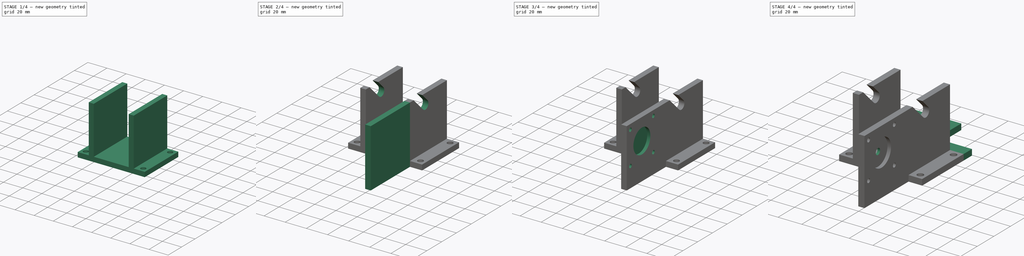
[diagram: build sequence overview — one tinted view per stage of 4, left to right]
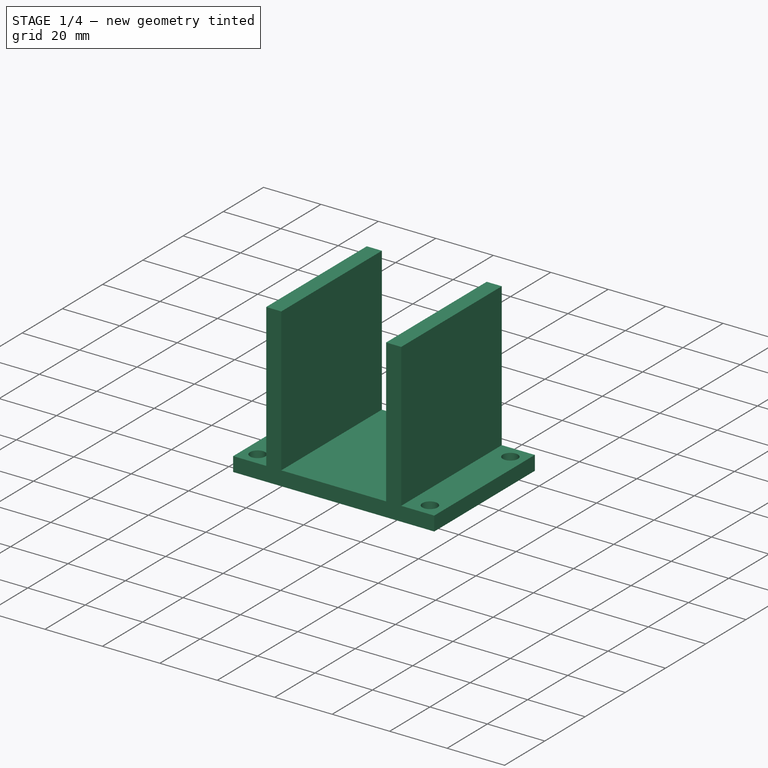
[diagram: stage 1 of 4 — iso view after this stage's code; geometry added in this stage tinted green]
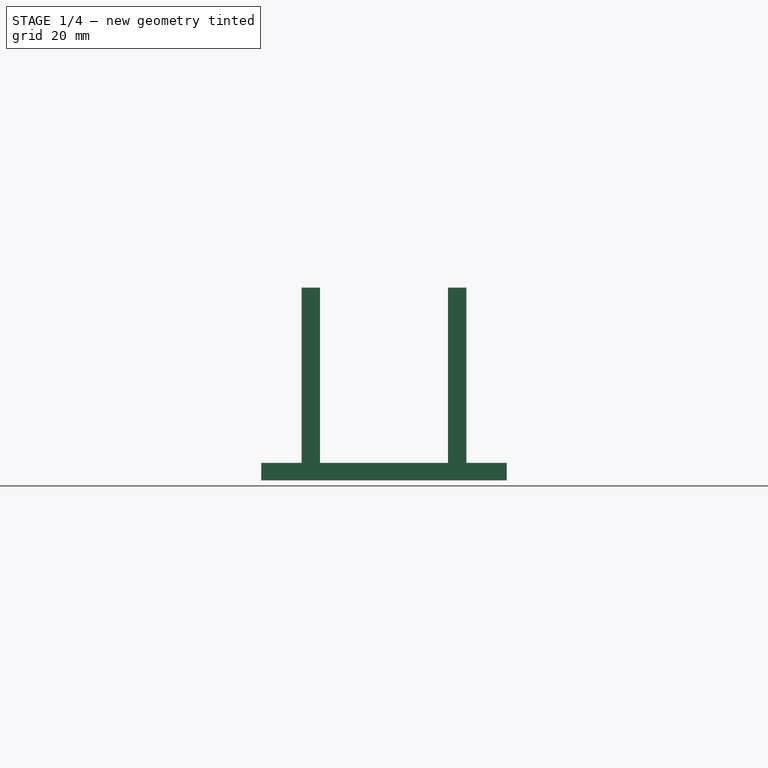
[diagram: stage 1 of 4 — front view after this stage's code; geometry added in this stage tinted green]
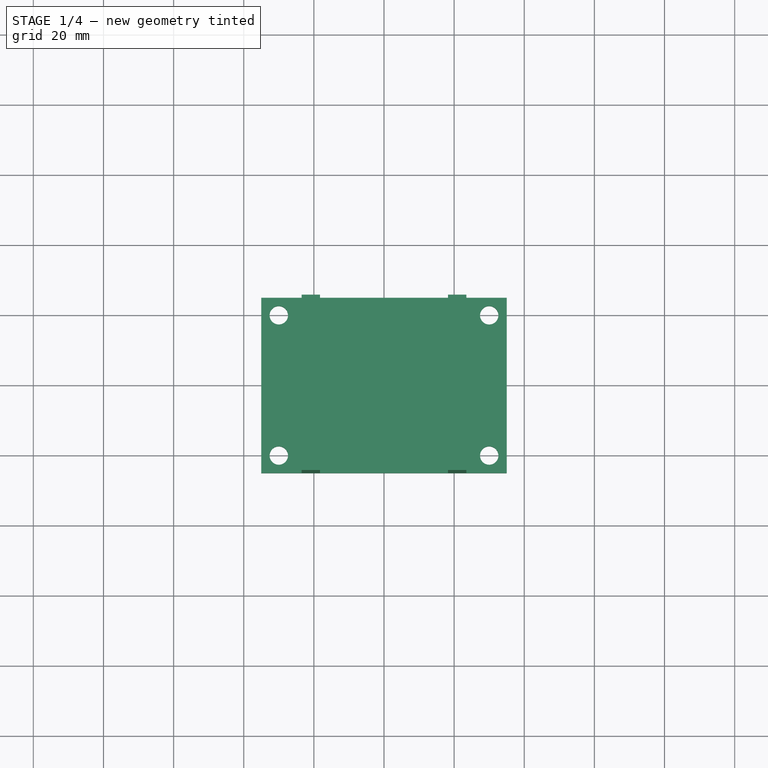
[diagram: stage 1 of 4 — top view after this stage's code; geometry added in this stage tinted green]
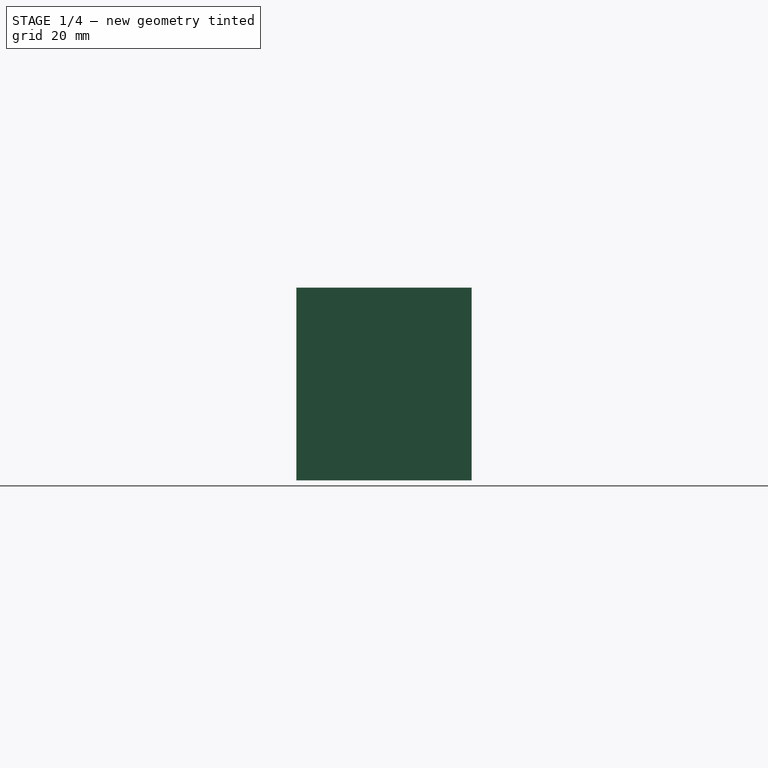
[diagram: stage 1 of 4 — right view after this stage's code; geometry added in this stage tinted green]
FCSTD DOCUMENT  (FreeCAD 0.21R33771 (Git))
Label: BeltGearMountAndStepperMount
License: All rights reserved
LicenseURL: https://en.wikipedia.org/wiki/All_rights_reserved
objects: Sketcher::SketchObject×13, PartDesign::Pocket×9, PartDesign::Pad×5, PartDesign::Body×1
note: 42 computed .brp shape members not serialized (recipe doc carries the construction recipe); baked Part::Feature solids carry a one-line shape summary decoded from their .brp

FEATURE [Sketcher::SketchObject] Sketch
  FullyConstrained = true
  MapMode = 5
  Support = -> [XY_Plane]
  sketch-geometry (4):
    g0: LineSegment StartX=-35 StartY=-25 StartZ=0 EndX=-35 EndY=25 EndZ=0
    g1: LineSegment StartX=-35 StartY=25 StartZ=0 EndX=35 EndY=25 EndZ=0
    g2: LineSegment StartX=35 StartY=25 StartZ=0 EndX=35 EndY=-25 EndZ=0
    g3: LineSegment StartX=35 StartY=-25 StartZ=0 EndX=-35 EndY=-25 EndZ=0
  constraints (12):
    c: Vertical(g0)
    c: Coincident(g0,g1)
    c: Horizontal(g1)
    c: Coincident(g1,g2)
    c: Coincident(g2,g3)
    c: Coincident(g3,g0)
    c: Horizontal(g3)
    c: Vertical(g2)
    c: DistanceX(g0,g-1) = 35
    c: DistanceX(g0,g1) = 70
    c: DistanceY(g-1,g1) = 25
    c: DistanceY(g2,g1) = 50
FEATURE [PartDesign::Pad] Pad
  Direction = (0,0,1)
  Length = 5
  Length2 = 10
  Profile = -> Sketch
  ReferenceAxis = -> Sketch [N_Axis]
  Type = 0
FEATURE [Sketcher::SketchObject] Sketch001
  FullyConstrained = true
  MapMode = 5
  Placement = pos=(0,0,5) rot=(0,0,1;0rad)
  Support = -> [Pad]
  sketch-geometry (4):
    g0: Circle CenterX=-30 CenterY=20 CenterZ=0 NormalX=0 NormalY=0 NormalZ=1 AngleXU=0 Radius=2.625
    g1: Circle CenterX=30 CenterY=20 CenterZ=0 NormalX=0 NormalY=0 NormalZ=1 AngleXU=0 Radius=2.625
    g2: Circle CenterX=30 CenterY=-20 CenterZ=0 NormalX=0 NormalY=0 NormalZ=1 AngleXU=0 Radius=2.625
    g3: Circle CenterX=-30 CenterY=-20 CenterZ=0 NormalX=0 NormalY=0 NormalZ=1 AngleXU=0 Radius=2.625
  constraints (12):
    c: Diameter(g0) = 5.25
    c: Diameter(g3) = 5.25
    c: Diameter(g2) = 5.25
    c: Diameter(g1) = 5.25
    c: DistanceX(g0,g-1) = 30
    c: DistanceX(g3,g-1) = 30
    c: DistanceX(g3,g2) = 60
    c: DistanceX(g0,g1) = 60
    c: DistanceY(g-1,g1) = 20
    c: DistanceY(g-1,g0) = 20
    c: DistanceY(g3,g-1) = 20
    c: DistanceY(g2,g-1) = 20
FEATURE [PartDesign::Pocket] Pocket
  BaseFeature = -> Pad
  Direction = (0,0,-1)
  Length = 5
  Length2 = 5
  Profile = -> Sketch001
  ReferenceAxis = -> Sketch001 [N_Axis]
  Type = 0
FEATURE [Sketcher::SketchObject] Sketch002
  ExternalGeometry = -> [Pocket]
  FullyConstrained = true
  MapMode = 5
  Placement = pos=(0,0,5) rot=(0,0,1;0rad)
  Support = -> [Pocket]
  sketch-geometry (4):
    g0: LineSegment StartX=-23.5 StartY=-25 StartZ=0 EndX=-23.5 EndY=25 EndZ=0
    g1: LineSegment StartX=-23.5 StartY=25 StartZ=0 EndX=23.5 EndY=25 EndZ=0
    g2: LineSegment StartX=23.5 StartY=25 StartZ=0 EndX=23.5 EndY=-25 EndZ=0
    g3: LineSegment StartX=23.5 StartY=-25 StartZ=0 EndX=-23.5 EndY=-25 EndZ=0
  constraints (12):
    c: PointOnObject(g0,g-4)
    c: PointOnObject(g0,g-3)
    c: Vertical(g0)
    c: Coincident(g0,g1)
    c: PointOnObject(g1,g-3)
    c: Coincident(g1,g2)
    c: PointOnObject(g2,g-4)
    c: Vertical(g2)
    c: Coincident(g2,g3)
    c: Coincident(g3,g0)
    c: DistanceX(g0,g-1) = 23.5
    c: DistanceX(g0,g1) = 47
FEATURE [PartDesign::Pad] Pad001
  BaseFeature = -> Pocket
  Direction = (0,0,1)
  Length = 50
  Length2 = 10
  Profile = -> Sketch002
  ReferenceAxis = -> Sketch002 [N_Axis]
  Type = 0
FEATURE [Sketcher::SketchObject] Sketch003
  ExternalGeometry = -> [Pad001]
  FullyConstrained = true
  MapMode = 5
  Placement = pos=(0,0,55) rot=(0,0,1;0rad)
  Support = -> [Pad001]
  sketch-geometry (4):
    g0: LineSegment StartX=-18.25 StartY=-25 StartZ=0 EndX=-18.25 EndY=25 EndZ=0
    g1: LineSegment StartX=-18.25 StartY=25 StartZ=0 EndX=18.25 EndY=25 EndZ=0
    g2: LineSegment StartX=18.25 StartY=25 StartZ=0 EndX=18.25 EndY=-25 EndZ=0
    g3: LineSegment StartX=18.25 StartY=-25 StartZ=0 EndX=-18.25 EndY=-25 EndZ=0
  constraints (12):
    c: PointOnObject(g0,g-4)
    c: PointOnObject(g0,g-3)
    c: Vertical(g0)
    c: Coincident(g0,g1)
    c: PointOnObject(g1,g-3)
    c: Coincident(g1,g2)
    c: PointOnObject(g2,g-4)
    c: Vertical(g2)
    c: Coincident(g2,g3)
    c: Coincident(g3,g0)
    c: DistanceX(g0,g-1) = 18.25
    c: DistanceX(g-1,g1) = 18.25
FEATURE [PartDesign::Pocket] Pocket001
  BaseFeature = -> Pad001
  Direction = (0,0,-1)
  Length = 50
  Length2 = 5
  Profile = -> Sketch003
  ReferenceAxis = -> Sketch003 [N_Axis]
  Type = 0
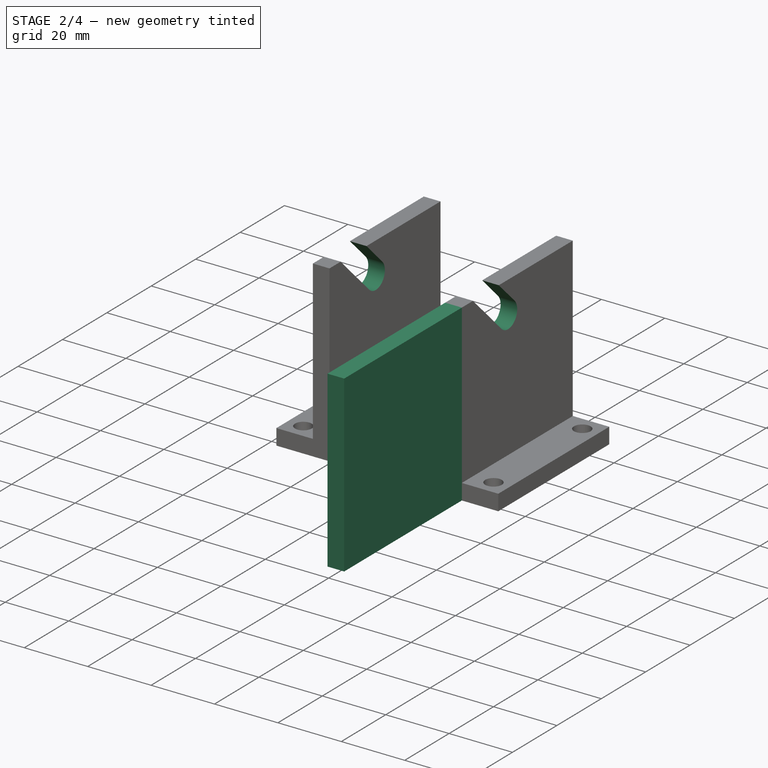
[diagram: stage 2 of 4 — iso view after this stage's code; geometry added in this stage tinted green]
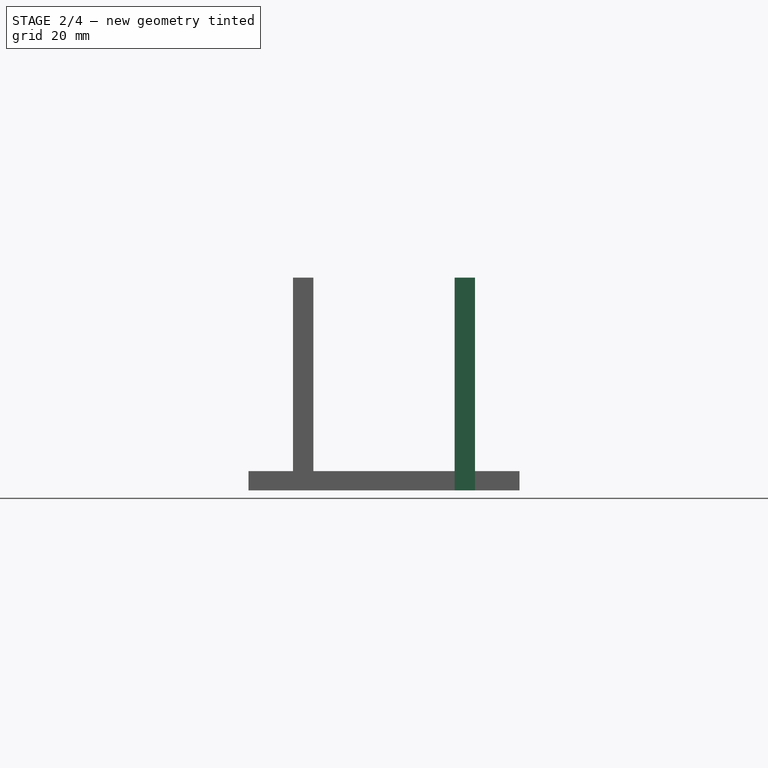
[diagram: stage 2 of 4 — front view after this stage's code; geometry added in this stage tinted green]
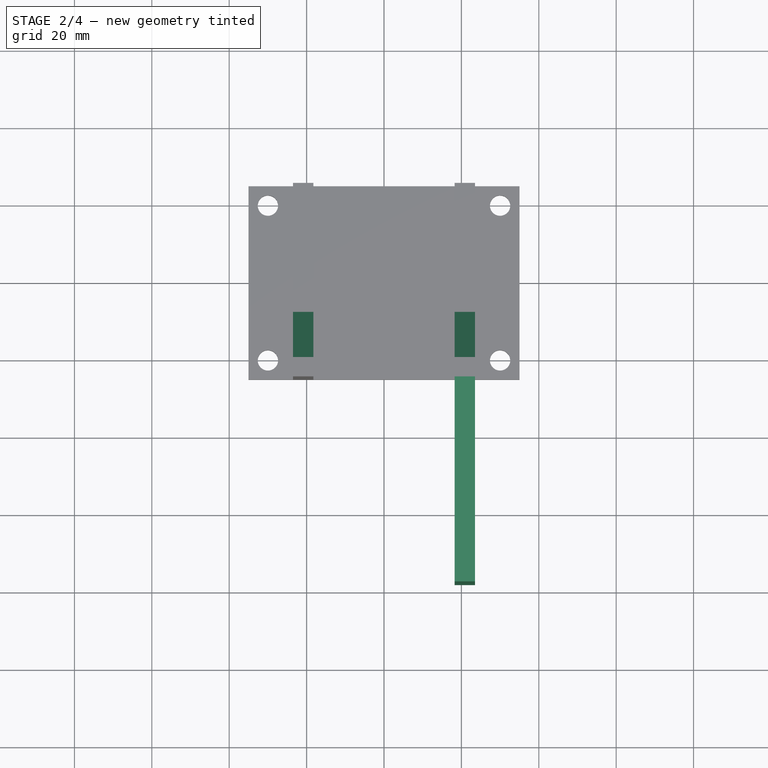
[diagram: stage 2 of 4 — top view after this stage's code; geometry added in this stage tinted green]
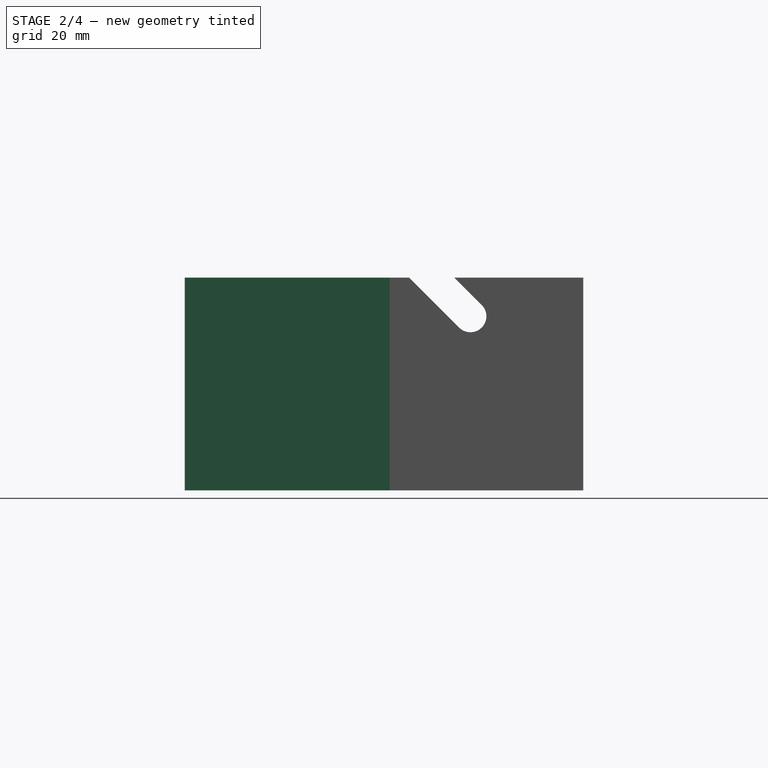
[diagram: stage 2 of 4 — right view after this stage's code; geometry added in this stage tinted green]
FEATURE [Sketcher::SketchObject] Sketch004
  ExternalGeometry = -> [Pocket001]
  FullyConstrained = true
  MapMode = 5
  Placement = pos=(23.5,0,0) rot=(0.57735,0.57735,0.57735;2.0944rad)
  Support = -> [Pocket001]
  sketch-geometry (4):
    g0: LineSegment StartX=-8.33275 StartY=55 StartZ=0 EndX=-1.25275 EndY=47.92 EndZ=0
    g1: LineSegment StartX=-20 StartY=55 StartZ=0 EndX=-7.08 EndY=42.08 EndZ=0
    g2: ArcOfCircle CenterX=-4.16637 CenterY=45 CenterZ=0 NormalX=0 NormalY=0 NormalZ=1 AngleXU=0 Radius=4.125 StartAngle=3.92808 EndAngle=7.06968
    g3: LineSegment StartX=-20 StartY=55 StartZ=0 EndX=-8.33275 EndY=55 EndZ=0
  constraints (13):
    c: PointOnObject(g0,g-3)
    c: Angle(g0,g-3) = 0.785398
    c: PointOnObject(g1,g-3)
    c: Angle(g1,g-3) = 0.785398
    c: Coincident(g2,g1)
    c: Coincident(g2,g0)
    c: Distance(g1,g0) = 8.25
    c: DistanceX(g-3,g1) = 5
    c: DistanceY(g-4,g2) = 40
    c: DistanceY(g1,g1) = 12.92
    c: Coincident(g1,g3)
    c: Coincident(g3,g0)
    c: DistanceX(g0,g0) = 7.08
FEATURE [PartDesign::Pocket] Pocket002
  BaseFeature = -> Pocket001
  Direction = (-1,0,0)
  Length = 40
  Length2 = 5
  Profile = -> Sketch004
  ReferenceAxis = -> Sketch004 [N_Axis]
  Type = 0
FEATURE [PartDesign::Pocket] Pocket003
  BaseFeature = -> Pocket002
  Direction = (-1,0,0)
  Length = 50
  Length2 = 5
  Profile = -> Sketch004
  ReferenceAxis = -> Sketch004 [N_Axis]
  Type = 0
FEATURE [Sketcher::SketchObject] Sketch005
  ExternalGeometry = -> [Pocket003]
  FullyConstrained = true
  MapMode = 5
  Placement = pos=(0,-25,0) rot=(1,0,0;1.5708rad)
  Support = -> [Pocket003]
  sketch-geometry (4):
    g0: LineSegment StartX=18.25 StartY=55 StartZ=0 EndX=23.5 EndY=55 EndZ=0
    g1: LineSegment StartX=23.5 StartY=55 StartZ=0 EndX=23.5 EndY=0 EndZ=0
    g2: LineSegment StartX=23.5 StartY=0 StartZ=0 EndX=18.25 EndY=0 EndZ=0
    g3: LineSegment StartX=18.25 StartY=0 StartZ=0 EndX=18.25 EndY=55 EndZ=0
  constraints (10):
    c: Coincident(g-4,g0)
    c: Coincident(g0,g-5)
    c: Coincident(g0,g1)
    c: PointOnObject(g1,g-7)
    c: Vertical(g1)
    c: Coincident(g1,g2)
    c: PointOnObject(g2,g-7)
    c: Coincident(g2,g3)
    c: Coincident(g3,g0)
    c: Vertical(g3)
FEATURE [PartDesign::Pad] Pad002
  BaseFeature = -> Pocket003
  Direction = (0,-1,2e-16)
  Length = 53
  Length2 = 10
  Profile = -> Sketch005
  ReferenceAxis = -> Sketch005 [N_Axis]
  Type = 0
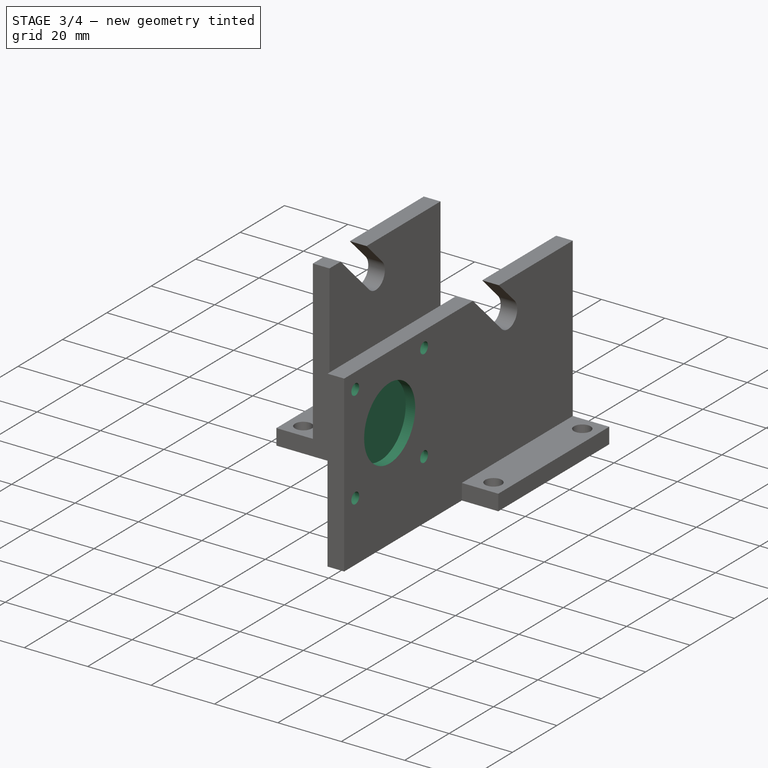
[diagram: stage 3 of 4 — iso view after this stage's code; geometry added in this stage tinted green]
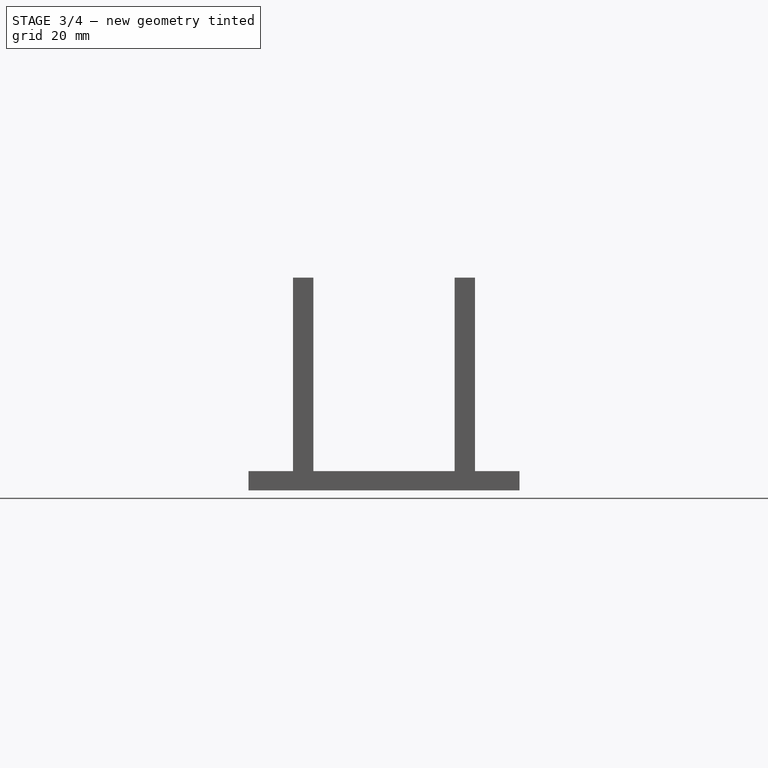
[diagram: stage 3 of 4 — front view after this stage's code; geometry added in this stage tinted green]
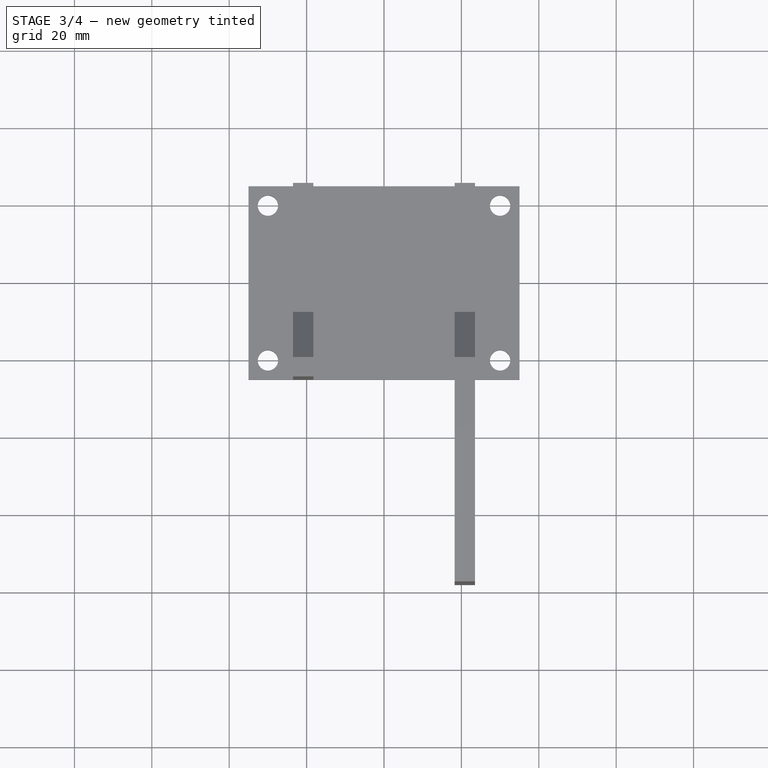
[diagram: stage 3 of 4 — top view after this stage's code; geometry added in this stage tinted green]
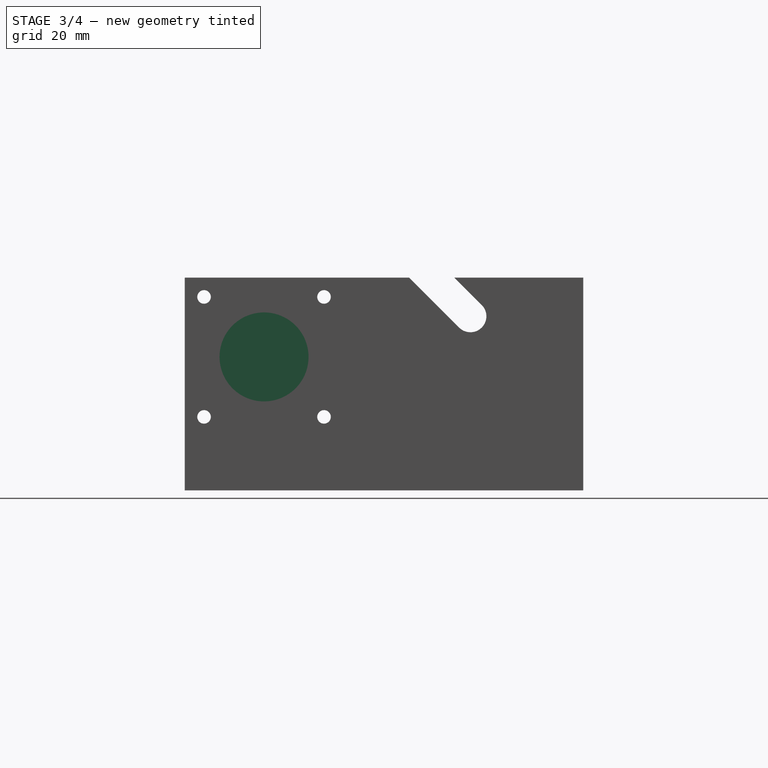
[diagram: stage 3 of 4 — right view after this stage's code; geometry added in this stage tinted green]
FEATURE [Sketcher::SketchObject] Sketch006
  ExternalGeometry = -> [Pad002]
  FullyConstrained = true
  MapMode = 5
  Placement = pos=(23.5,0,0) rot=(0.57735,0.57735,0.57735;2.0944rad)
  Support = -> [Pad002]
  sketch-geometry (4):
    g0: Circle CenterX=-73 CenterY=50 CenterZ=0 NormalX=0 NormalY=0 NormalZ=1 AngleXU=0 Radius=1.75
    g1: Circle CenterX=-42 CenterY=50 CenterZ=0 NormalX=0 NormalY=0 NormalZ=1 AngleXU=0 Radius=1.75
    g2: Circle CenterX=-42 CenterY=19 CenterZ=0 NormalX=0 NormalY=0 NormalZ=1 AngleXU=0 Radius=1.75
    g3: Circle CenterX=-73 CenterY=19 CenterZ=0 NormalX=0 NormalY=0 NormalZ=1 AngleXU=0 Radius=1.75
  constraints (12):
    c: DistanceX(g-4,g0) = 5
    c: DistanceY(g0,g-4) = 5
    c: Diameter(g0) = 3.5
    c: DistanceX(g0,g1) = 31
    c: DistanceX(g3,g2) = 31
    c: DistanceX(g3,g0) = 0
    c: Diameter(g3) = 3.5
    c: Diameter(g2) = 3.5
    c: Diameter(g1) = 3.5
    c: DistanceY(g3,g0) = 31
    c: DistanceY(g1,g0) = 0
    c: DistanceY(g3,g2) = 0
FEATURE [PartDesign::Pocket] Pocket004
  BaseFeature = -> Pad002
  Direction = (-1,0,0)
  Length = 7
  Length2 = 5
  Profile = -> Sketch006
  ReferenceAxis = -> Sketch006 [N_Axis]
  Type = 0
FEATURE [Sketcher::SketchObject] Sketch007
  ExternalGeometry = -> [Pocket004]
  FullyConstrained = true
  MapMode = 5
  Placement = pos=(23.5,0,0) rot=(0.57735,0.57735,0.57735;2.0944rad)
  Support = -> [Pocket004]
  sketch-geometry (1):
    g0: Circle CenterX=-57.5 CenterY=34.5 CenterZ=0 NormalX=0 NormalY=0 NormalZ=1 AngleXU=0 Radius=11.5
  constraints (3):
    c: Diameter(g0) = 23
    c: DistanceX(g-3,g0) = 15.5
    c: DistanceY(g0,g-3) = 15.5
FEATURE [PartDesign::Pocket] Pocket005
  BaseFeature = -> Pocket004
  Direction = (-1,0,0)
  Length = 3
  Length2 = 5
  Profile = -> Sketch007
  ReferenceAxis = -> Sketch007 [N_Axis]
  Type = 0
FEATURE [Sketcher::SketchObject] Sketch008
  ExternalGeometry = -> [Pocket005]
  FullyConstrained = true
  MapMode = 5
  Placement = pos=(18.25,0,0) rot=(0.57735,-0.57735,-0.57735;2.0944rad)
  Support = -> [Pocket005]
  sketch-geometry (4):
    g0: Circle CenterX=42 CenterY=50 CenterZ=0 NormalX=0 NormalY=0 NormalZ=1 AngleXU=0 Radius=2.75
    g1: Circle CenterX=73 CenterY=50 CenterZ=0 NormalX=0 NormalY=0 NormalZ=1 AngleXU=0 Radius=2.75
    g2: Circle CenterX=73 CenterY=19 CenterZ=0 NormalX=0 NormalY=0 NormalZ=1 AngleXU=0 Radius=2.75
    g3: Circle CenterX=42 CenterY=19 CenterZ=0 NormalX=0 NormalY=0 NormalZ=1 AngleXU=0 Radius=2.75
  constraints (8):
    c: Coincident(g0,g-3)
    c: Coincident(g1,g-6)
    c: Coincident(g2,g-5)
    c: Coincident(g3,g-4)
    c: Diameter(g1) = 5.5
    c: Diameter(g0) = 5.5
    c: Diameter(g3) = 5.5
    c: Diameter(g2) = 5.5
FEATURE [PartDesign::Pocket] Pocket006
  BaseFeature = -> Pocket005
  Direction = (1,0,0)
  Length = 4
  Length2 = 5
  Profile = -> Sketch008
  ReferenceAxis = -> Sketch008 [N_Axis]
  Type = 0
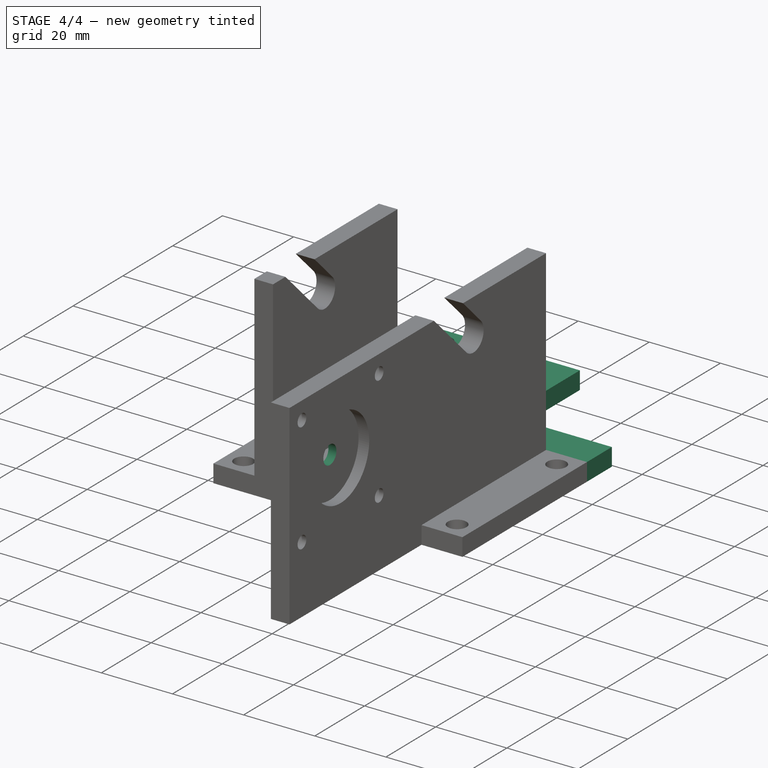
[diagram: stage 4 of 4 — iso view after this stage's code; geometry added in this stage tinted green]
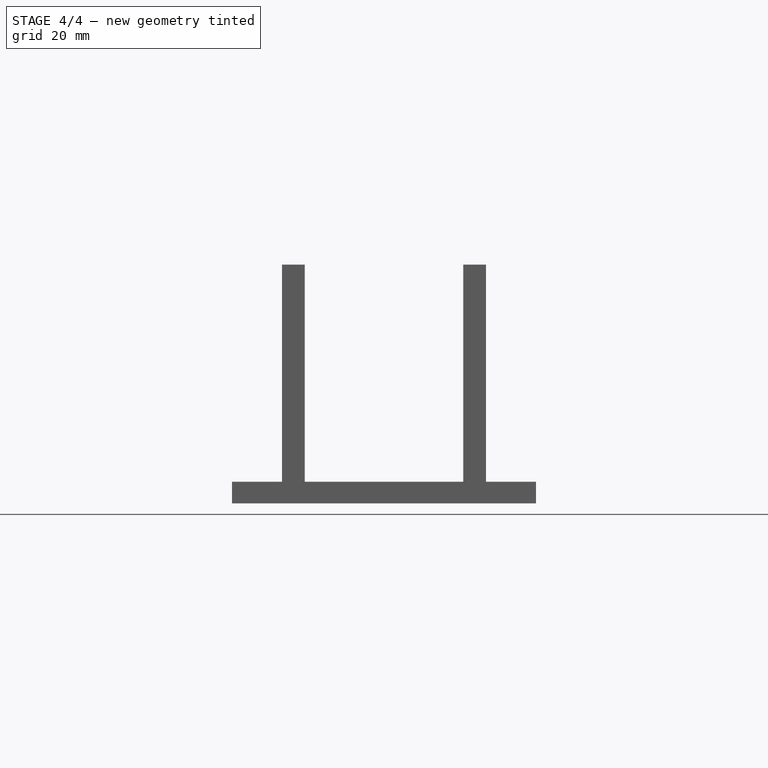
[diagram: stage 4 of 4 — front view after this stage's code; geometry added in this stage tinted green]
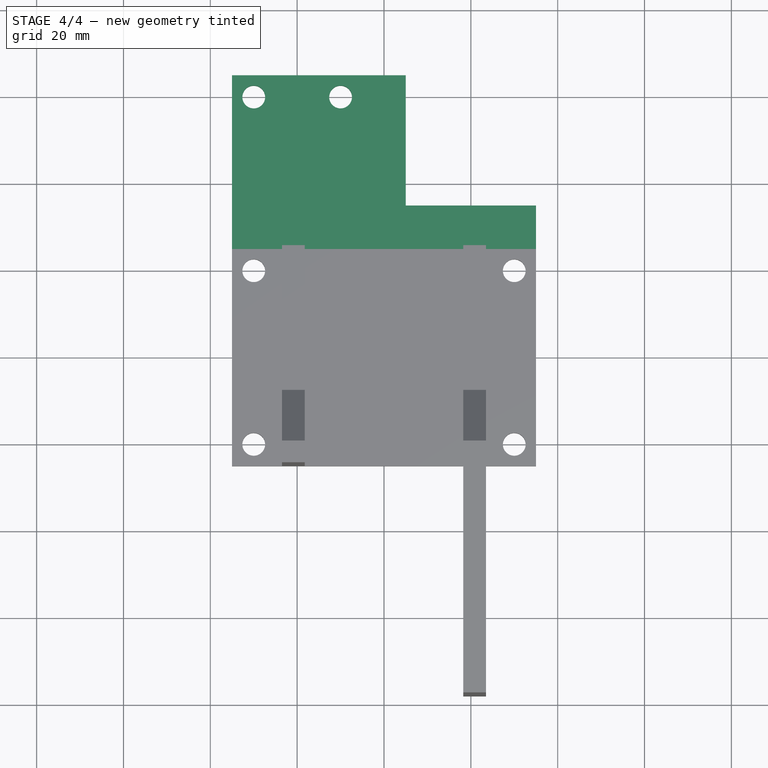
[diagram: stage 4 of 4 — top view after this stage's code; geometry added in this stage tinted green]
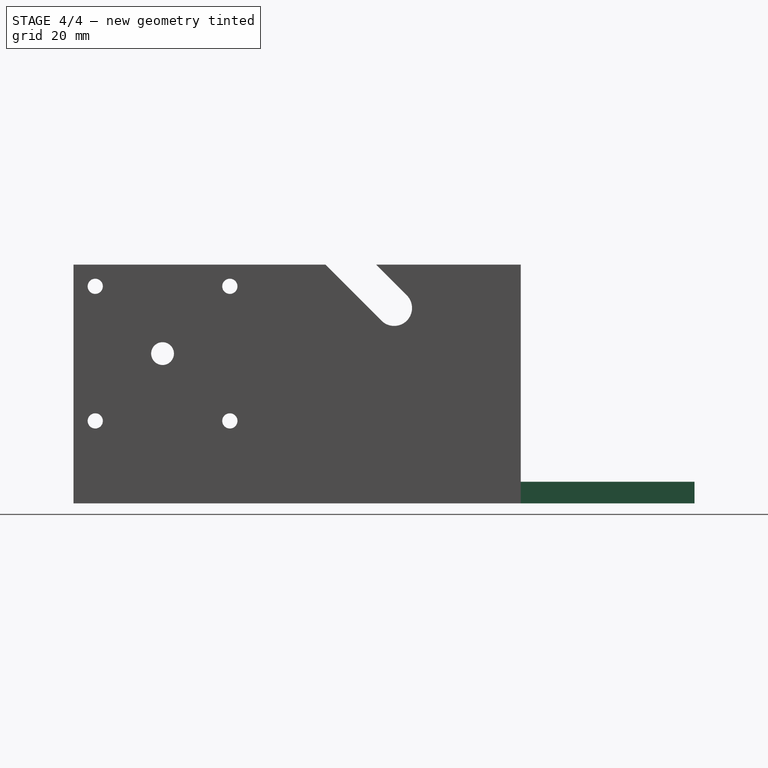
[diagram: stage 4 of 4 — right view after this stage's code; geometry added in this stage tinted green]
FEATURE [Sketcher::SketchObject] Sketch009
  ExternalGeometry = -> [Pocket006]
  FullyConstrained = true
  MapMode = 5
  Placement = pos=(20.5,0,0) rot=(0.57735,0.57735,0.57735;2.0944rad)
  Support = -> [Pocket006]
  sketch-geometry (1):
    g0: Circle CenterX=-57.5 CenterY=34.5 CenterZ=0 NormalX=0 NormalY=0 NormalZ=1 AngleXU=0 Radius=2.625
  constraints (2):
    c: Coincident(g0,g-3)
    c: Diameter(g0) = 5.25
FEATURE [PartDesign::Pocket] Pocket007
  BaseFeature = -> Pocket006
  Direction = (-1,0,0)
  Length = 5
  Length2 = 5
  Profile = -> Sketch009
  ReferenceAxis = -> Sketch009 [N_Axis]
  Type = 0
FEATURE [Sketcher::SketchObject] Sketch010
  ExternalGeometry = -> [Pocket007]
  FullyConstrained = true
  MapMode = 5
  Placement = pos=(0,25,0) rot=(0,0.707107,0.707107;3.14159rad)
  Support = -> [Pocket007]
  sketch-geometry (4):
    g0: LineSegment StartX=35 StartY=5 StartZ=0 EndX=-5 EndY=5 EndZ=0
    g1: LineSegment StartX=-5 StartY=5 StartZ=0 EndX=-5 EndY=0 EndZ=0
    g2: LineSegment StartX=-5 StartY=0 StartZ=0 EndX=35 EndY=0 EndZ=0
    g3: LineSegment StartX=35 StartY=0 StartZ=0 EndX=35 EndY=5 EndZ=0
  constraints (10):
    c: Coincident(g-4,g0)
    c: PointOnObject(g0,g-5)
    c: Coincident(g0,g1)
    c: PointOnObject(g1,g-1)
    c: Coincident(g1,g2)
    c: Coincident(g2,g-3)
    c: Coincident(g2,g3)
    c: Coincident(g3,g0)
    c: Vertical(g1)
    c: DistanceX(g0,g0) = 40
FEATURE [PartDesign::Pad] Pad003
  BaseFeature = -> Pocket007
  Direction = (0,1,-2e-16)
  Length = 40
  Length2 = 10
  Profile = -> Sketch010
  ReferenceAxis = -> Sketch010 [N_Axis]
  Type = 0
FEATURE [Sketcher::SketchObject] Sketch011
  ExternalGeometry = -> [Pad003]
  FullyConstrained = true
  MapMode = 5
  Placement = pos=(0,1.1e-15,5) rot=(0,0,1;0rad)
  Support = -> [Pad003]
  sketch-geometry (2):
    g0: Circle CenterX=-30 CenterY=60 CenterZ=0 NormalX=0 NormalY=0 NormalZ=1 AngleXU=0 Radius=2.625
    g1: Circle CenterX=-10 CenterY=60 CenterZ=0 NormalX=0 NormalY=0 NormalZ=1 AngleXU=0 Radius=2.625
  constraints (7):
    c: DistanceY(g-3,g0) = 40
    c: DistanceX(g-3,g0) = 0
    c: DistanceX(g0,g1) = 20
    c: DistanceY(g0,g1) = 0
    c: Diameter(g0) = 5.25
    c: Diameter(g-3) = 5.25
    c: Diameter(g1) = 5.25
FEATURE [PartDesign::Pocket] Pocket008
  BaseFeature = -> Pad003
  Direction = (0,-2e-16,-1)
  Length = 5
  Length2 = 5
  Profile = -> Sketch011
  ReferenceAxis = -> Sketch011 [N_Axis]
  Type = 0
FEATURE [Sketcher::SketchObject] Sketch012
  ExternalGeometry = -> [Pocket008]
  FullyConstrained = true
  MapMode = 5
  Placement = pos=(0,25,0) rot=(0,0.707107,0.707107;3.14159rad)
  Support = -> [Pocket008]
  sketch-geometry (4):
    g0: LineSegment StartX=-35 StartY=5 StartZ=0 EndX=-5 EndY=5 EndZ=0
    g1: LineSegment StartX=-5 StartY=5 StartZ=0 EndX=-5 EndY=0 EndZ=0
    g2: LineSegment StartX=-5 StartY=0 StartZ=0 EndX=-35 EndY=0 EndZ=0
    g3: LineSegment StartX=-35 StartY=0 StartZ=0 EndX=-35 EndY=5 EndZ=0
  constraints (8):
    c: Coincident(g-6,g0)
    c: Coincident(g0,g-5)
    c: Coincident(g0,g1)
    c: Coincident(g1,g-5)
    c: Coincident(g1,g2)
    c: Coincident(g2,g-6)
    c: Coincident(g2,g3)
    c: Coincident(g3,g0)
FEATURE [PartDesign::Pad] Pad004
  BaseFeature = -> Pocket008
  Direction = (0,1,-2e-16)
  Length = 10
  Length2 = 10
  Profile = -> Sketch012
  ReferenceAxis = -> Sketch012 [N_Axis]
  Type = 0
FEATURE [PartDesign::Body] Body
  Group = -> [Sketch,Pad,Sketch001,Pocket,Sketch002,Pad001,Sketch003,Pocket001,Sketch004,Pocket002,Pocket003,Sketch005,Pad002,Sketch006,Pocket004,Sketch007,Pocket005,Sketch008,Pocket006,Sketch009,Pocket007,Sketch010,Pad003,Sketch011,Pocket008,Sketch012,Pad004]
  Origin = -> Origin
  Tip = -> Pad004
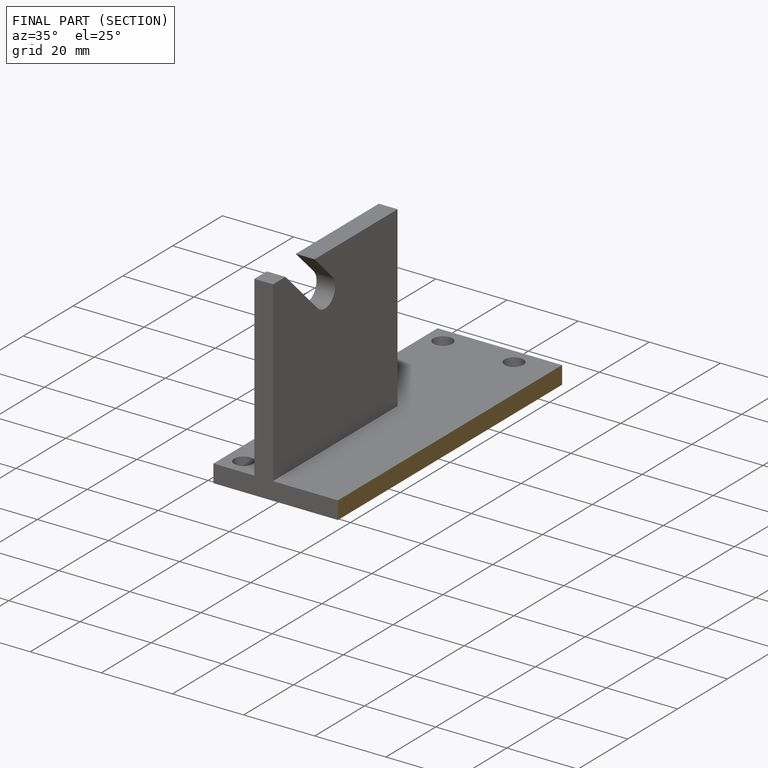
[diagram: finished part — half-section view (interior)]
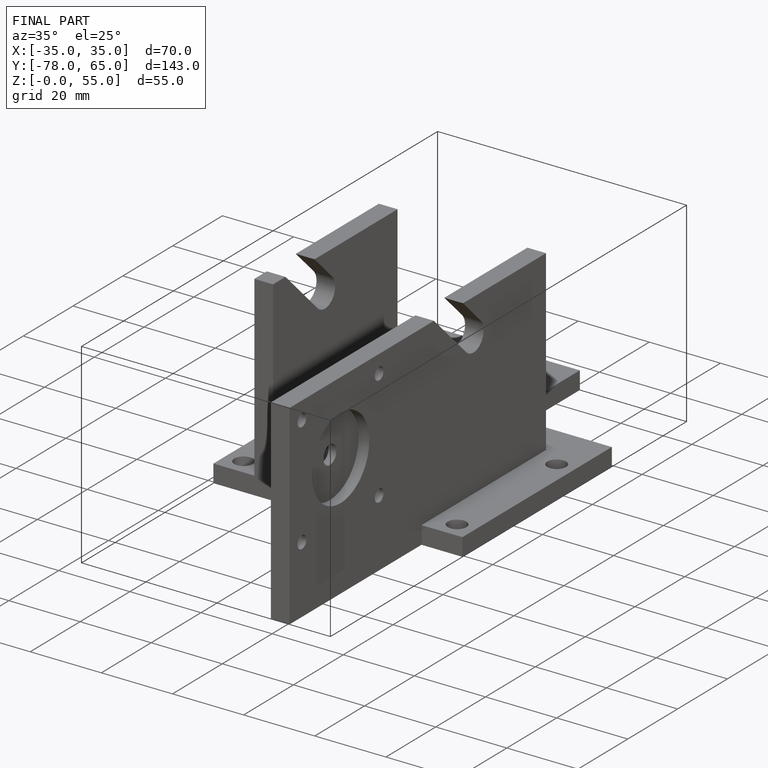
[diagram: finished part — iso view with bounding-box wireframe]
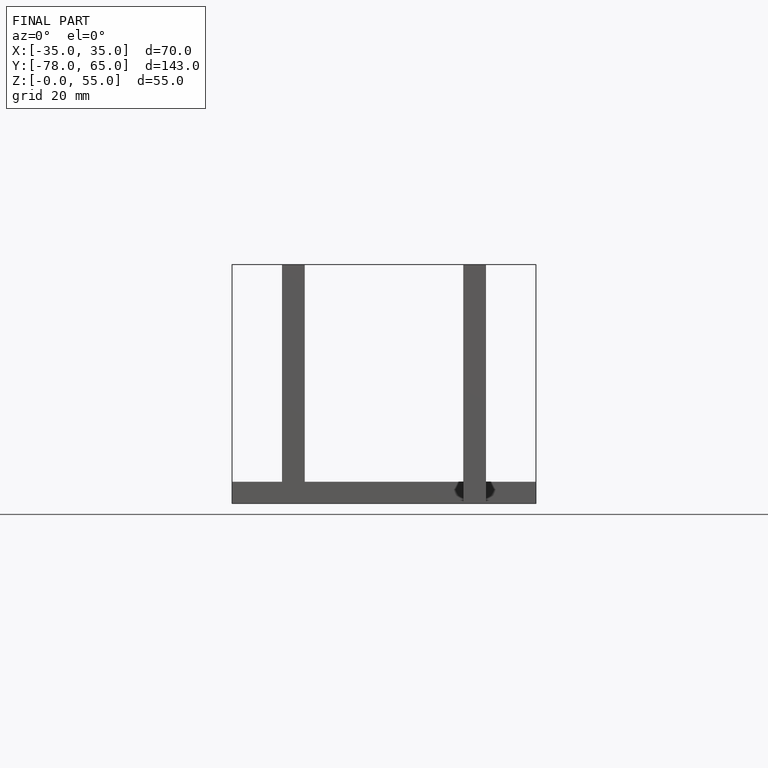
[diagram: finished part — front view with bounding-box wireframe]
